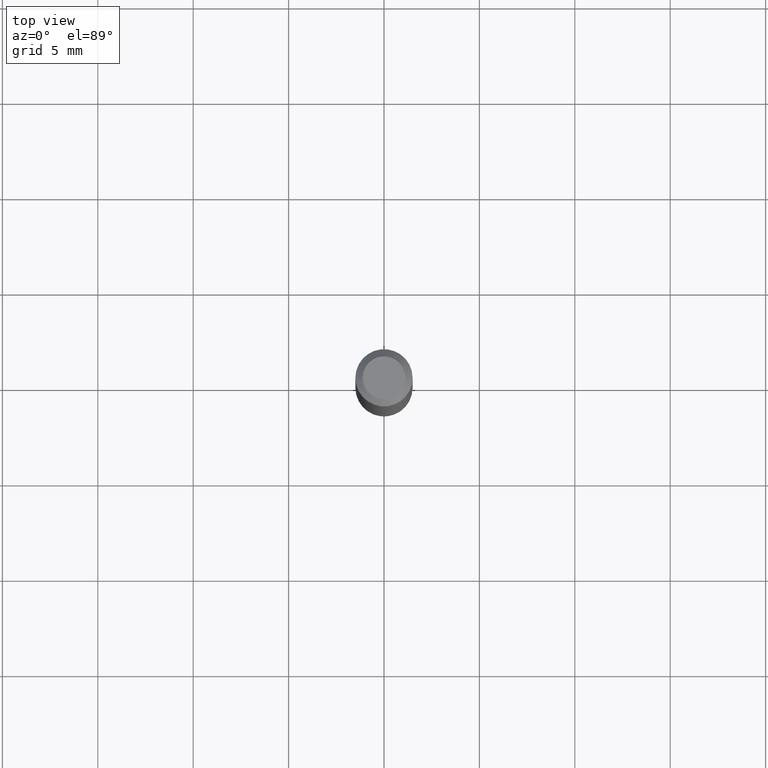
[diagram: clean part render]
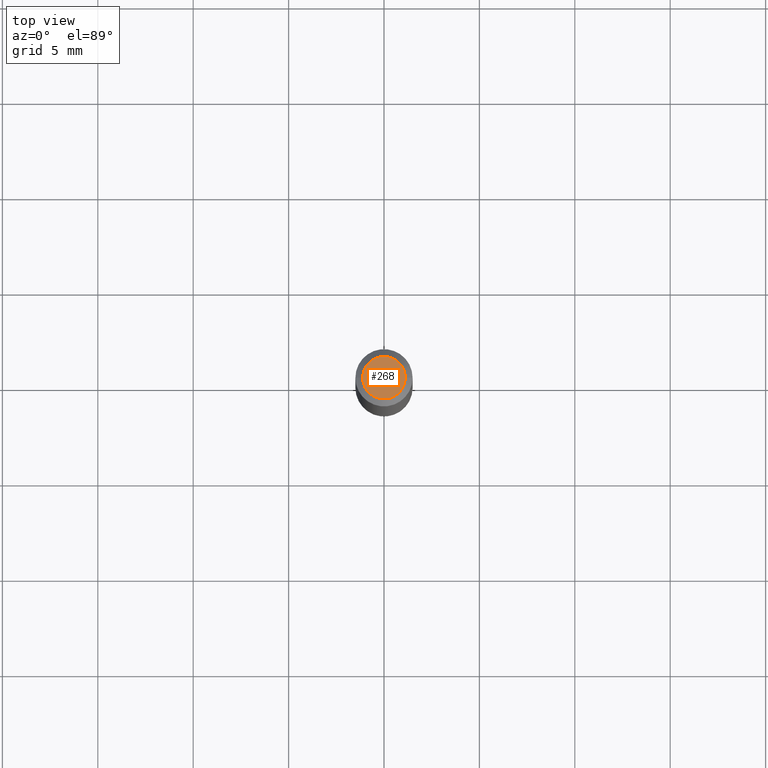
[diagram: same view with one face highlighted and labeled with its STEP entity id]
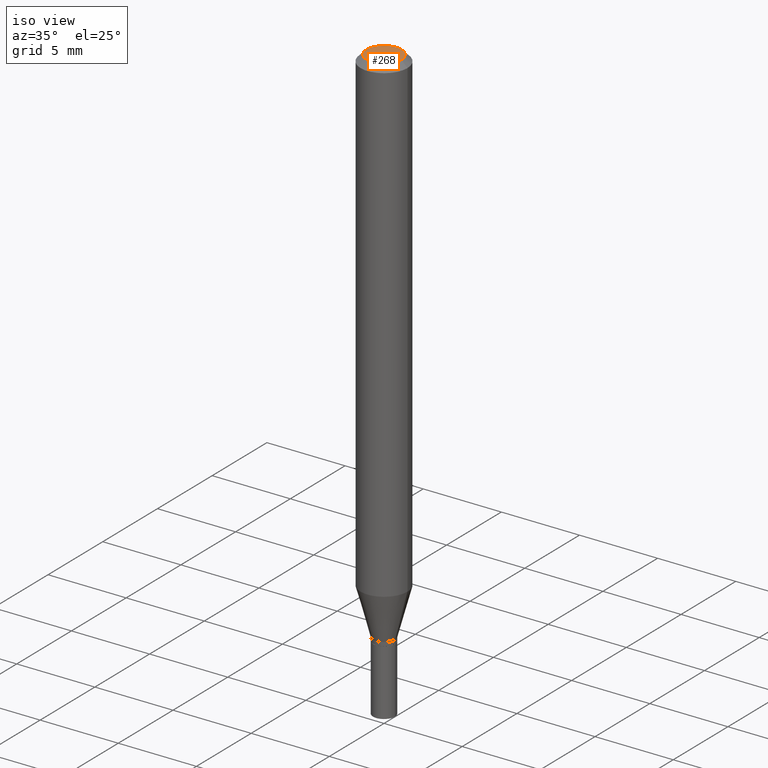
[diagram: same view with one face highlighted and labeled with its STEP entity id]
A machine part, top view. The second image highlights one B-rep face of the part: STEP entity #268.
A second angle (iso view) of the same face is appended — the face is thin or edge-on in the first view.
In plain terms, the highlighted planar face has unit normal (0, -0, -1).
Its self-contained STEP definition (entity closure, byte-faithful):
#22 = VERTEX_POINT ( 'NONE', #391 ) ;
#32 = CIRCLE ( 'NONE', #319, 0.04404999999999999888 ) ;
#66 = EDGE_CURVE ( 'NONE', #387, #22, #32, .T. ) ;
#89 = PLANE ( 'NONE',  #453 ) ;
#122 = DIRECTION ( 'NONE',  ( -1.000000000000000000, 6.982962677686265922E-15, -4.876176775795935793E-29 ) ) ;
#137 = CARTESIAN_POINT ( 'NONE',  ( 8.019272414352406998E-45, -1.144939568028632061E-30, -3.279237254660487495E-16 ) ) ;
#147 = CARTESIAN_POINT ( 'NONE',  ( 0.04404999999999999888, -3.798447818264465995E-16, -3.279237254660463336E-16 ) ) ;
#157 = DIRECTION ( 'NONE',  ( 1.000000000000000000, -6.982962677686265922E-15, 4.819687581474398999E-29 ) ) ;
#168 = EDGE_CURVE ( 'NONE', #22, #387, #170, .T. ) ;
#170 = CIRCLE ( 'NONE', #199, 0.04404999999999999888 ) ;
#199 = AXIS2_PLACEMENT_3D ( 'NONE', #373, #405, #157 ) ;
#207 = ORIENTED_EDGE ( 'NONE', *, *, #66, .T. ) ;
#245 = DIRECTION ( 'NONE',  ( 1.000000000000000000, -6.982962677686265922E-15, 4.819687581474398999E-29 ) ) ;
#268 = ADVANCED_FACE ( 'NONE', ( #409 ), #89, .F. ) ;
#310 = EDGE_LOOP ( 'NONE', ( #456, #207 ) ) ;
#319 = AXIS2_PLACEMENT_3D ( 'NONE', #137, #419, #245 ) ;
#345 = DIRECTION ( 'NONE',  ( 2.438088387897960049E-29, -3.491481338843145188E-15, -1.000000000000000000 ) ) ;
#373 = CARTESIAN_POINT ( 'NONE',  ( 8.019272414352406998E-45, -1.144939568028632061E-30, -3.279237254660487495E-16 ) ) ;
#387 = VERTEX_POINT ( 'NONE', #147 ) ;
#391 = CARTESIAN_POINT ( 'NONE',  ( -0.04404999999999999888, 3.337856159934028715E-16, -3.279237254660510174E-16 ) ) ;
#405 = DIRECTION ( 'NONE',  ( -2.445468806185136597E-29, 3.491481338843145583E-15, 1.000000000000000000 ) ) ;
#409 = FACE_OUTER_BOUND ( 'NONE', #310, .T. ) ;
#419 = DIRECTION ( 'NONE',  ( -2.445468806185136597E-29, 3.491481338843145583E-15, 1.000000000000000000 ) ) ;
#449 = CARTESIAN_POINT ( 'NONE',  ( 3.075995059520799729E-16, 0.04404999999999999888, -3.177616157090649282E-16 ) ) ;
#453 = AXIS2_PLACEMENT_3D ( 'NONE', #449, #345, #122 ) ;
#456 = ORIENTED_EDGE ( 'NONE', *, *, #168, .T. ) ;